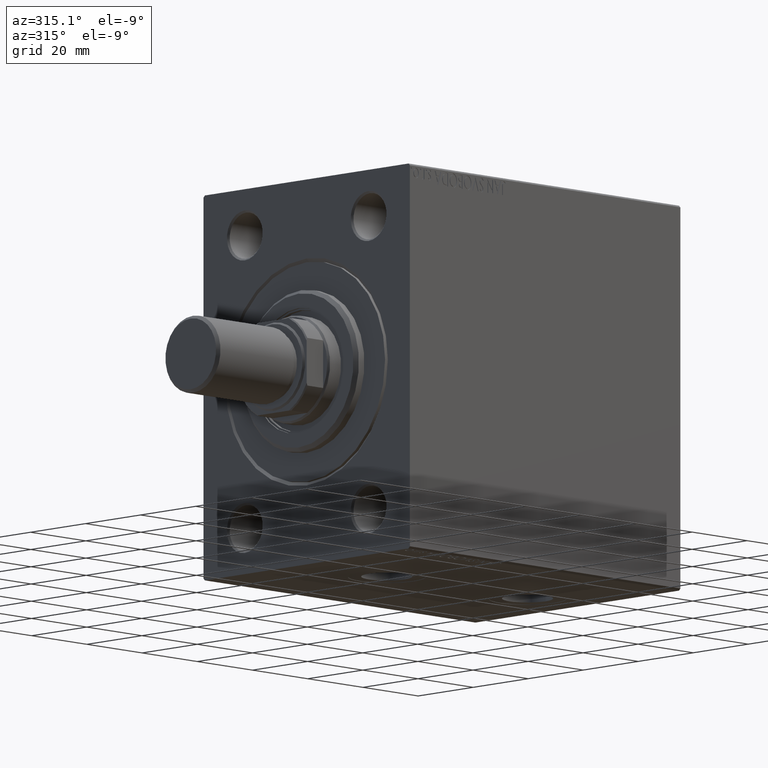
[diagram: clean part render]
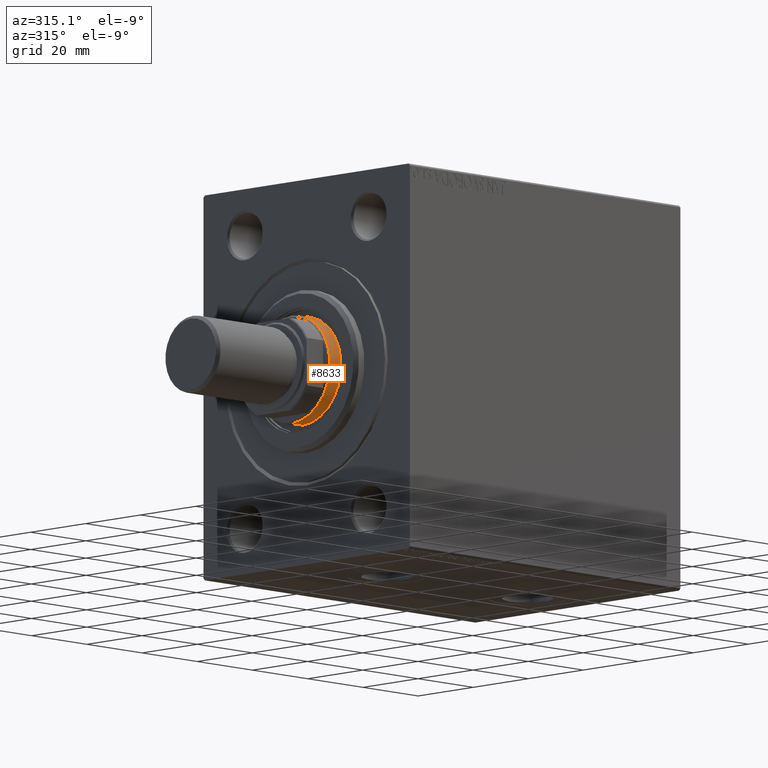
[diagram: same view with one face highlighted and labeled with its STEP entity id]
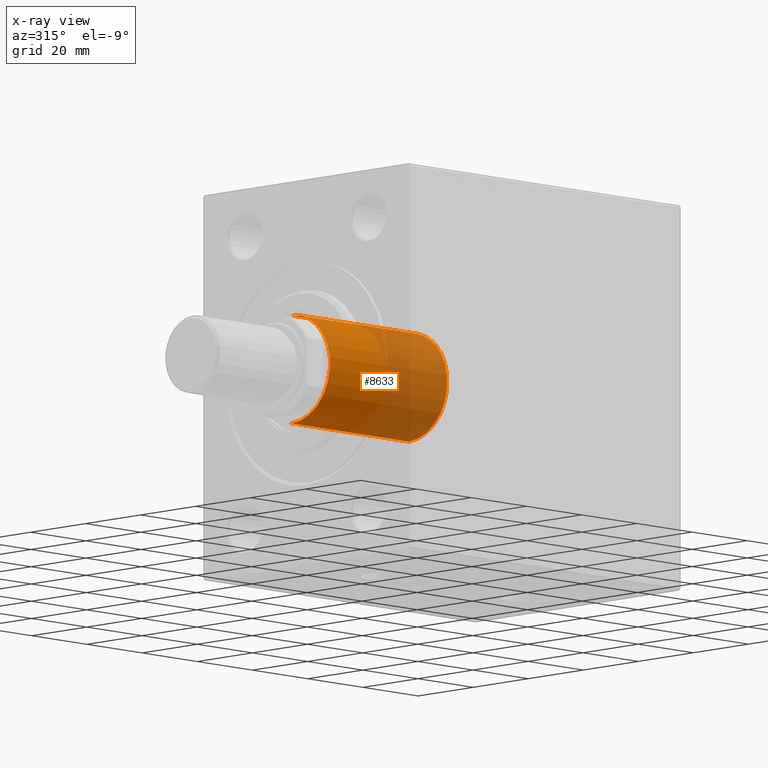
[diagram: x-ray of the same camera — body ghosted, the highlighted face saturated]
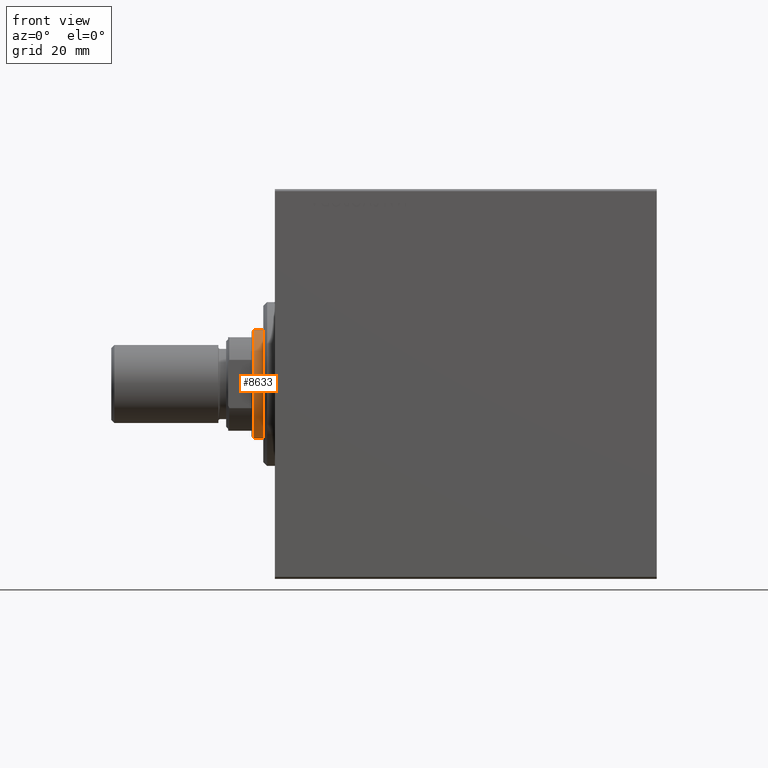
[diagram: same view with one face highlighted and labeled with its STEP entity id]
A machine part, auxiliary view. The second image highlights one B-rep face of the part: STEP entity #8633.
The next image is the same camera in x-ray: the body ghosted, the highlighted face saturated — about 52% of this face is hidden behind the body in this view.
A second angle (front view) of the same face is appended — the face is thin or edge-on in the first view.
In plain terms, the highlighted cylindrical surface (partial cylindrical patch) has radius 14 mm, axis along (1, -0, -0).
Its self-contained STEP definition (entity closure, byte-faithful):
#293 = EDGE_CURVE ( 'NONE', #15703, #12831, #42843, .T. ) ;
#791 = VECTOR ( 'NONE', #8762, 1000.000000000000000 ) ;
#1639 = CARTESIAN_POINT ( 'NONE',  ( 14.00000000000000178, 1.714505518806294835E-15, 89.49999999999997158 ) ) ;
#1781 = DIRECTION ( 'NONE',  ( 0.000000000000000000, 0.000000000000000000, -1.000000000000000000 ) ) ;
#4836 = ORIENTED_EDGE ( 'NONE', *, *, #293, .T. ) ;
#5091 = EDGE_CURVE ( 'NONE', #14768, #15703, #33551, .T. ) ;
#5371 = AXIS2_PLACEMENT_3D ( 'NONE', #13111, #9710, #23548 ) ;
#6630 = CARTESIAN_POINT ( 'NONE',  ( -14.00000000000000178, 0.000000000000000000, 47.00000000000000000 ) ) ;
#7356 = VERTEX_POINT ( 'NONE', #29312 ) ;
#7946 = DIRECTION ( 'NONE',  ( 1.000000000000000000, 0.000000000000000000, 0.000000000000000000 ) ) ;
#8633 = ADVANCED_FACE ( 'NONE', ( #24214 ), #27616, .T. ) ;
#8762 = DIRECTION ( 'NONE',  ( -0.000000000000000000, -0.000000000000000000, -1.000000000000000000 ) ) ;
#9710 = DIRECTION ( 'NONE',  ( -0.000000000000000000, -0.000000000000000000, -1.000000000000000000 ) ) ;
#10351 = CARTESIAN_POINT ( 'NONE',  ( 14.00000000000000178, 1.714505518806294835E-15, 90.00000000000000000 ) ) ;
#11735 = CARTESIAN_POINT ( 'NONE',  ( -14.00000000000000178, 0.000000000000000000, 90.00000000000000000 ) ) ;
#12076 = DIRECTION ( 'NONE',  ( 1.000000000000000000, 0.000000000000000000, 0.000000000000000000 ) ) ;
#12831 = VERTEX_POINT ( 'NONE', #6630 ) ;
#13111 = CARTESIAN_POINT ( 'NONE',  ( 0.000000000000000000, 0.000000000000000000, 90.00000000000000000 ) ) ;
#13313 = CIRCLE ( 'NONE', #43760, 14.00000000000000178 ) ;
#14615 = EDGE_LOOP ( 'NONE', ( #34954, #27629, #4836, #31198 ) ) ;
#14768 = VERTEX_POINT ( 'NONE', #1639 ) ;
#15703 = VERTEX_POINT ( 'NONE', #25784 ) ;
#16163 = AXIS2_PLACEMENT_3D ( 'NONE', #39291, #1781, #7946 ) ;
#19087 = VECTOR ( 'NONE', #41239, 1000.000000000000000 ) ;
#23548 = DIRECTION ( 'NONE',  ( -1.000000000000000000, 0.000000000000000000, 0.000000000000000000 ) ) ;
#24214 = FACE_OUTER_BOUND ( 'NONE', #14615, .T. ) ;
#24398 = EDGE_CURVE ( 'NONE', #14768, #7356, #35114, .T. ) ;
#25784 = CARTESIAN_POINT ( 'NONE',  ( -14.00000000000000178, 0.000000000000000000, 89.49999999999997158 ) ) ;
#25912 = DIRECTION ( 'NONE',  ( 0.000000000000000000, 0.000000000000000000, 1.000000000000000000 ) ) ;
#26052 = EDGE_CURVE ( 'NONE', #12831, #7356, #13313, .T. ) ;
#27616 = CYLINDRICAL_SURFACE ( 'NONE', #5371, 14.00000000000000178 ) ;
#27629 = ORIENTED_EDGE ( 'NONE', *, *, #5091, .T. ) ;
#29312 = CARTESIAN_POINT ( 'NONE',  ( 14.00000000000000178, 1.714505518806294835E-15, 47.00000000000000000 ) ) ;
#31198 = ORIENTED_EDGE ( 'NONE', *, *, #26052, .T. ) ;
#33551 = CIRCLE ( 'NONE', #16163, 14.00000000000000178 ) ;
#34954 = ORIENTED_EDGE ( 'NONE', *, *, #24398, .F. ) ;
#35114 = LINE ( 'NONE', #10351, #19087 ) ;
#35931 = CARTESIAN_POINT ( 'NONE',  ( 0.000000000000000000, 0.000000000000000000, 47.00000000000000000 ) ) ;
#39291 = CARTESIAN_POINT ( 'NONE',  ( 0.000000000000000000, 0.000000000000000000, 89.49999999999997158 ) ) ;
#41239 = DIRECTION ( 'NONE',  ( -0.000000000000000000, -0.000000000000000000, -1.000000000000000000 ) ) ;
#42843 = LINE ( 'NONE', #11735, #791 ) ;
#43760 = AXIS2_PLACEMENT_3D ( 'NONE', #35931, #25912, #12076 ) ;